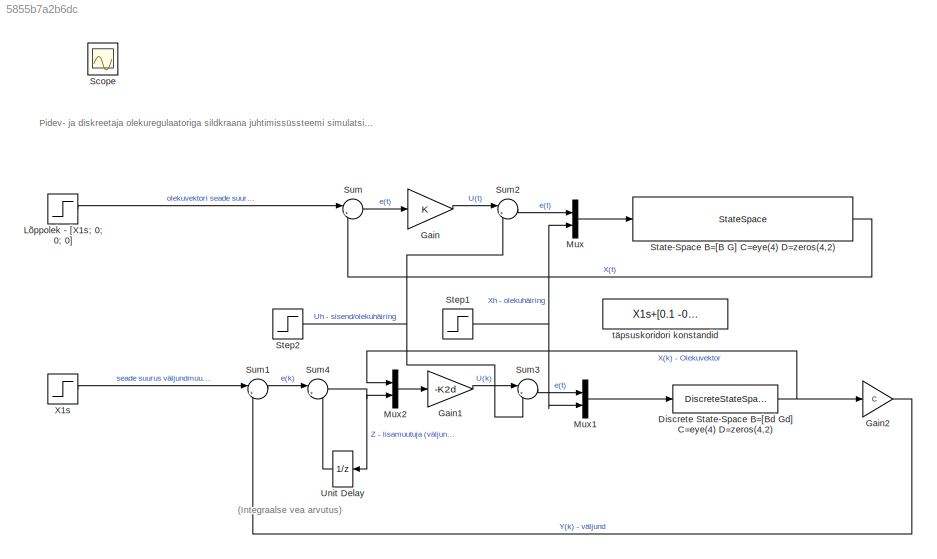
MODEL slx_5855b7a2b6dc
KIND model
CONFIG AbsTol = auto
CONFIG EnableMultiTasking = off
CONFIG FixedStep = auto
CONFIG MaxStep = auto
CONFIG MinStep = auto
CONFIG RelTol = 1e-3
CONFIG SampleTimeConstraint = Unconstrained
CONFIG SolverName = VariableStepAuto
CONFIG StartTime = 0.0
CONFIG StopTime = 40
BLOCK [Step]  X1s
  After = X1s
  SampleTime = 0
  Time = 0
BLOCK [DiscreteStateSpace] Discrete State-Space B=[Bd Gd] C=eye(4) D=zeros(4,2)
  A = Ad
  B = [Bd Gd]
  C = eye(4)
  D = zeros(4,2)
  SampleTime = td
BLOCK [Gain] Gain
  Gain = K
  Multiplication = Matrix(K*u)
BLOCK [Gain] Gain1
  Gain = -K2d
  Multiplication = Matrix(K*u)
BLOCK [Gain] Gain2
  Gain = C
  Multiplication = Matrix(K*u)
BLOCK [Step] Lõppolek - [X1s; 0; 0; 0]
  After = [X1s; 0; 0; 0]
  SampleTime = 0
  Time = 0
BLOCK [Mux] Mux
  DisplayOption = bar
  Inputs = 2
  Ports = [2, 1]
BLOCK [Mux] Mux1
  DisplayOption = bar
  Inputs = 2
  Ports = [2, 1]
BLOCK [Mux] Mux2
  DisplayOption = bar
  Inputs = 2
  Ports = [2, 1]
BLOCK [Scope] Scope
  Floating = off
  IOType = viewer
  NumInputPorts = 1
  Ports = []
  ScopeSpecificationString = Simulink.scopes.TimeScopeBlockCfg('CurrentConfiguration', extmgr.ConfigurationSet(extmgr.Configuration('Core','General UI',true),extmgr.Configuration('Core','Source UI',true),extmgr.Configuration('Sources','WiredSimulink',true),extmgr.Configuration('Visuals','Time Domain',true,'SerializedDisplays',{struct('MinYLimReal','-587.29321','MaxYLimReal','2637.92996','YLabelReal','','MinYLimMag',' 0.00000'...<+2487ch>
BLOCK [StateSpace] State-Space B=[B G] C=eye(4) D=zeros(4,2)
  A = A
  B = [B G]
  C = eye(4)
  D = zeros(4,2)
  InitialCondition = 0
  Ports = [1, 1]
BLOCK [Step] Step1
  After = 0
  SampleTime = 0
  Time = 17
BLOCK [Step] Step2
  After = 155
  SampleTime = 0
  Time = 17
BLOCK [Sum] Sum
  Inputs = |+-
  Ports = [2, 1]
BLOCK [Sum] Sum1
  Inputs = |+-
  Ports = [2, 1]
BLOCK [Sum] Sum2
  Inputs = |++
  Ports = [2, 1]
BLOCK [Sum] Sum3
  Inputs = |++
  Ports = [2, 1]
BLOCK [Sum] Sum4
  Inputs = |++
  Ports = [2, 1]
BLOCK [UnitDelay] Unit Delay
  HasFrameUpgradeWarning = on
  SampleTime = td
BLOCK [Constant] täpsuskoridori konstandid
  Value = X1s+[0.1 -0.1]
ANNOTATION (root): (Integraalse vea arvutus)
ANNOTATION (root): Pidev- ja diskreetaja olekuregulaatoriga sildkraana juhtimissüssteemi simulatsiooniskeem koos diskreetaja järgivsüsteemi integraalse tagasisidega
LINE  X1s:1 -> Sum1:1
NET Discrete State-Space B=[Bd Gd] C=eye(4) D=zeros(4,2):1 -> Gain2:1, Mux2:1
LINE Gain1:1 -> Sum3:1
LINE Gain2:1 -> Sum1:2
LINE Gain:1 -> Sum2:1
LINE Lõppolek - [X1s; 0; 0; 0]:1 -> Sum:1
LINE Mux1:1 -> Discrete State-Space B=[Bd Gd] C=eye(4) D=zeros(4,2):1
LINE Mux2:1 -> Gain1:1
LINE Mux:1 -> State-Space B=[B G] C=eye(4) D=zeros(4,2):1
LINE State-Space B=[B G] C=eye(4) D=zeros(4,2):1 -> Sum:2
NET Step1:1 -> Mux1:2, Mux:2
NET Step2:1 -> Sum2:2, Sum3:2
LINE Sum1:1 -> Sum4:1
LINE Sum2:1 -> Mux:1
LINE Sum3:1 -> Mux1:1
NET Sum4:1 -> Mux2:2, Unit Delay:1
LINE Sum:1 -> Gain:1
LINE Unit Delay:1 -> Sum4:2
note: NET lines group one-source signal fan-out (src -> all destinations, sorted); 1:1 wires keep LINE
